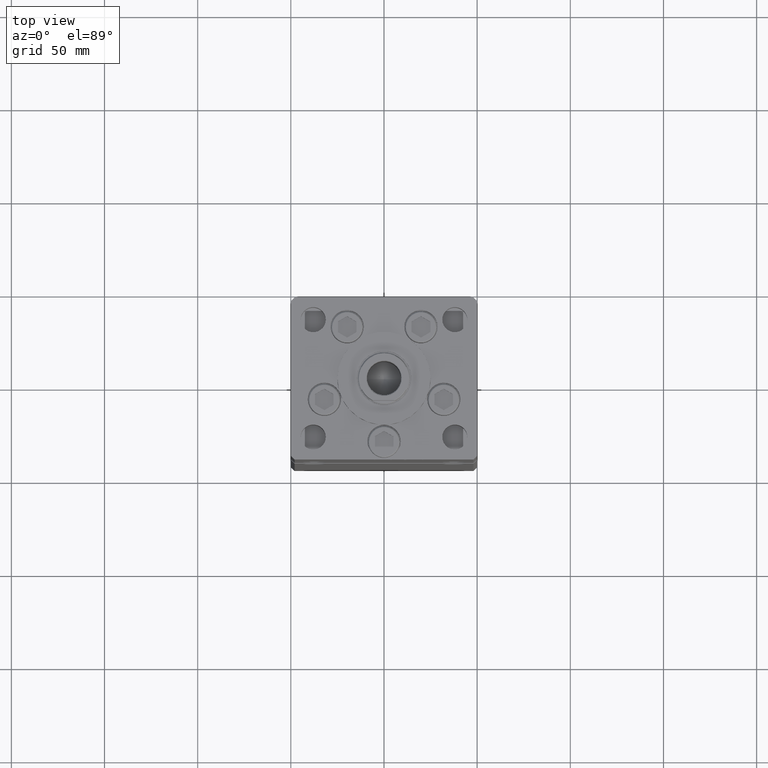
[diagram: clean part render]
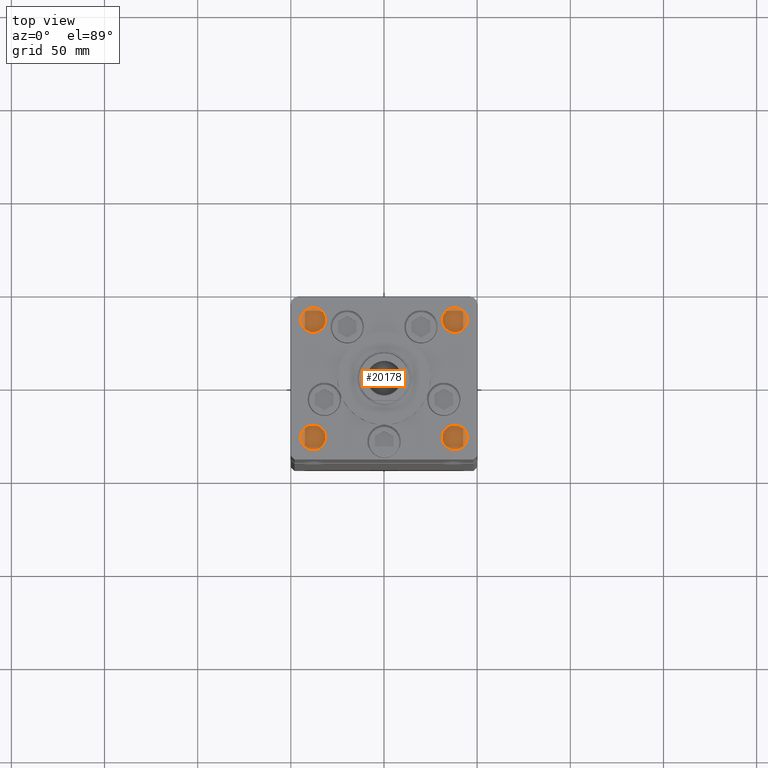
[diagram: same view with one face highlighted and labeled with its STEP entity id]
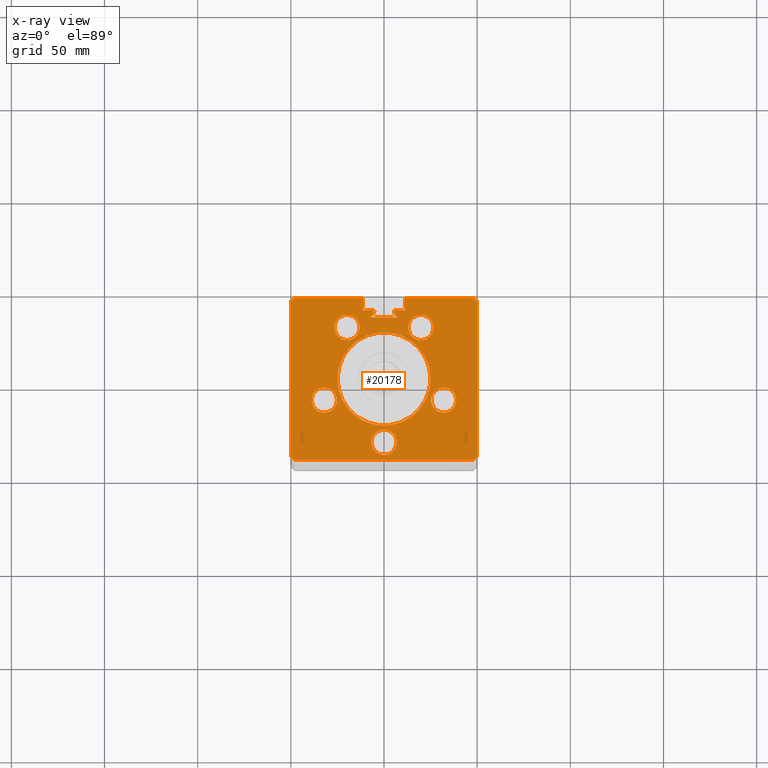
[diagram: x-ray of the same camera — body ghosted, the highlighted face saturated]
A machine part, top view. The second image highlights one B-rep face of the part: STEP entity #20178.
The next image is the same camera in x-ray: the body ghosted, the highlighted face saturated — about 0% of this face is hidden behind the body in this view.
In plain terms, the highlighted planar face has unit normal (0, 0, -1).
Its self-contained STEP definition (entity closure, byte-faithful):
#178 = EDGE_CURVE ( 'NONE', #42500, #14638, #43883, .T. ) ;
#255 = DIRECTION ( 'NONE',  ( 0.000000000000000000, 0.000000000000000000, 1.000000000000000000 ) ) ;
#380 = DIRECTION ( 'NONE',  ( 1.000000000000000000, 0.000000000000000000, 0.000000000000000000 ) ) ;
#450 = ORIENTED_EDGE ( 'NONE', *, *, #6765, .T. ) ;
#452 = LINE ( 'NONE', #45310, #17194 ) ;
#860 = CARTESIAN_POINT ( 'NONE',  ( 6.183333333333996151, 37.00000000000000000, 318.5000000000000000 ) ) ;
#976 = VECTOR ( 'NONE', #27513, 1000.000000000000000 ) ;
#1053 = CIRCLE ( 'NONE', #4461, 6.749999999999999112 ) ;
#1079 = FACE_BOUND ( 'NONE', #5528, .T. ) ;
#1113 = DIRECTION ( 'NONE',  ( 0.000000000000000000, 0.000000000000000000, 1.000000000000000000 ) ) ;
#1209 = VECTOR ( 'NONE', #21535, 1000.000000000000114 ) ;
#1382 = ORIENTED_EDGE ( 'NONE', *, *, #29632, .F. ) ;
#1476 = AXIS2_PLACEMENT_3D ( 'NONE', #30107, #1625, #26628 ) ;
#1625 = DIRECTION ( 'NONE',  ( 0.000000000000000000, 0.000000000000000000, -1.000000000000000000 ) ) ;
#1665 = ORIENTED_EDGE ( 'NONE', *, *, #6048, .T. ) ;
#2038 = VECTOR ( 'NONE', #26657, 1000.000000000000000 ) ;
#2439 = AXIS2_PLACEMENT_3D ( 'NONE', #15997, #40416, #380 ) ;
#2736 = CARTESIAN_POINT ( 'NONE',  ( 6.876153656360465050, 32.99999999999986500, 318.5000000000000000 ) ) ;
#2765 = ORIENTED_EDGE ( 'NONE', *, *, #19741, .F. ) ;
#2831 = AXIS2_PLACEMENT_3D ( 'NONE', #22090, #1113, #50276 ) ;
#2839 = CARTESIAN_POINT ( 'NONE',  ( 25.00000000000000000, 3.061616997868383043E-15, 318.5000000000000000 ) ) ;
#2843 = CARTESIAN_POINT ( 'NONE',  ( -50.00000000000001421, 41.49999999999999289, 318.5000000000000000 ) ) ;
#2864 = DIRECTION ( 'NONE',  ( 1.000000000000000000, 0.000000000000000000, 0.000000000000000000 ) ) ;
#2956 = VECTOR ( 'NONE', #3681, 1000.000000000000000 ) ;
#3152 = LINE ( 'NONE', #19305, #34737 ) ;
#3318 = DIRECTION ( 'NONE',  ( -1.000000000000000000, 0.000000000000000000, 0.000000000000000000 ) ) ;
#3645 = CARTESIAN_POINT ( 'NONE',  ( 50.00000000000001421, 41.49999999999999289, 318.5000000000000000 ) ) ;
#3681 = DIRECTION ( 'NONE',  ( -0.7071067811865487940, -0.7071067811865463515, 0.000000000000000000 ) ) ;
#3715 = CARTESIAN_POINT ( 'NONE',  ( -6.749999999999997335, -34.00000000000000000, 318.5000000000000000 ) ) ;
#3763 = CARTESIAN_POINT ( 'NONE',  ( -19.82068048781374259, 27.62499999999999645, 318.5000000000000000 ) ) ;
#3951 = EDGE_CURVE ( 'NONE', #19470, #18022, #38031, .T. ) ;
#4395 = DIRECTION ( 'NONE',  ( 1.000000000000000000, 0.000000000000000000, 0.000000000000000000 ) ) ;
#4438 = EDGE_CURVE ( 'NONE', #32525, #27516, #40581, .T. ) ;
#4461 = AXIS2_PLACEMENT_3D ( 'NONE', #12476, #33420, #32617 ) ;
#4486 = DIRECTION ( 'NONE',  ( 1.000000000000000000, 0.000000000000000000, 0.000000000000000000 ) ) ;
#4736 = ORIENTED_EDGE ( 'NONE', *, *, #24226, .F. ) ;
#4813 = VERTEX_POINT ( 'NONE', #9573 ) ;
#4893 = CARTESIAN_POINT ( 'NONE',  ( -11.24999999999999645, 43.50000000000000000, 318.5000000000000000 ) ) ;
#5283 = CARTESIAN_POINT ( 'NONE',  ( -25.30550741379015278, -11.33333333333334458, 318.5000000000000000 ) ) ;
#5387 = ORIENTED_EDGE ( 'NONE', *, *, #49611, .T. ) ;
#5528 = EDGE_LOOP ( 'NONE', ( #49193, #2765 ) ) ;
#5632 = EDGE_CURVE ( 'NONE', #16511, #25238, #34358, .T. ) ;
#5673 = LINE ( 'NONE', #26372, #1209 ) ;
#6048 = EDGE_CURVE ( 'NONE', #31065, #9070, #50813, .T. ) ;
#6134 = ORIENTED_EDGE ( 'NONE', *, *, #24869, .F. ) ;
#6563 = LINE ( 'NONE', #43086, #976 ) ;
#6662 = CIRCLE ( 'NONE', #24693, 25.00000000000000000 ) ;
#6765 = EDGE_CURVE ( 'NONE', #26953, #42966, #8249, .T. ) ;
#6898 = DIRECTION ( 'NONE',  ( 0.000000000000000000, 0.000000000000000000, 1.000000000000000000 ) ) ;
#6936 = ORIENTED_EDGE ( 'NONE', *, *, #25934, .F. ) ;
#7355 = LINE ( 'NONE', #40107, #33504 ) ;
#7663 = EDGE_CURVE ( 'NONE', #34642, #35252, #18245, .T. ) ;
#7669 = ORIENTED_EDGE ( 'NONE', *, *, #48875, .T. ) ;
#8249 = LINE ( 'NONE', #12025, #2956 ) ;
#9070 = VERTEX_POINT ( 'NONE', #51914 ) ;
#9153 = ORIENTED_EDGE ( 'NONE', *, *, #7663, .T. ) ;
#9212 = DIRECTION ( 'NONE',  ( 1.000000000000000000, 0.000000000000000000, 0.000000000000000000 ) ) ;
#9573 = CARTESIAN_POINT ( 'NONE',  ( 48.00000000000000711, 43.50000000000000000, 318.5000000000000000 ) ) ;
#10175 = DIRECTION ( 'NONE',  ( 0.7071067811865474617, -0.7071067811865474617, 0.000000000000000000 ) ) ;
#10268 = DIRECTION ( 'NONE',  ( -1.000000000000000000, 0.000000000000000000, 0.000000000000000000 ) ) ;
#10359 = CARTESIAN_POINT ( 'NONE',  ( -50.00000000000001421, 41.49999999999999289, 318.5000000000000000 ) ) ;
#10486 = PLANE ( 'NONE',  #1476 ) ;
#10580 = VECTOR ( 'NONE', #12373, 1000.000000000000000 ) ;
#10781 = CIRCLE ( 'NONE', #35597, 6.749999999999999112 ) ;
#10837 = CARTESIAN_POINT ( 'NONE',  ( -6.183333333333996151, 37.00000000000000000, 318.5000000000000000 ) ) ;
#10880 = VERTEX_POINT ( 'NONE', #2736 ) ;
#10887 = CARTESIAN_POINT ( 'NONE',  ( -25.00000000000000000, 0.000000000000000000, 318.5000000000000000 ) ) ;
#11017 = EDGE_CURVE ( 'NONE', #18696, #47207, #5673, .T. ) ;
#11849 = ORIENTED_EDGE ( 'NONE', *, *, #24662, .F. ) ;
#11945 = DIRECTION ( 'NONE',  ( 0.000000000000000000, 0.000000000000000000, -1.000000000000000000 ) ) ;
#11969 = DIRECTION ( 'NONE',  ( 1.000000000000000000, 0.000000000000000000, 0.000000000000000000 ) ) ;
#12025 = CARTESIAN_POINT ( 'NONE',  ( -48.00000000000000711, 43.50000000000000000, 318.5000000000000000 ) ) ;
#12039 = CARTESIAN_POINT ( 'NONE',  ( 0.000000000000000000, 0.000000000000000000, 318.5000000000000000 ) ) ;
#12373 = DIRECTION ( 'NONE',  ( -0.000000000000000000, -1.000000000000000000, 0.000000000000000000 ) ) ;
#12476 = CARTESIAN_POINT ( 'NONE',  ( -32.05550741379015278, -11.33333333333334458, 318.5000000000000000 ) ) ;
#12819 = DIRECTION ( 'NONE',  ( 1.000000000000000000, 0.000000000000000000, 0.000000000000000000 ) ) ;
#12949 = CARTESIAN_POINT ( 'NONE',  ( -5.249999999999995559, 36.06666666666599497, 318.5000000000000000 ) ) ;
#13242 = DIRECTION ( 'NONE',  ( 0.000000000000000000, 0.000000000000000000, 1.000000000000000000 ) ) ;
#13256 = ORIENTED_EDGE ( 'NONE', *, *, #178, .F. ) ;
#13463 = CIRCLE ( 'NONE', #43464, 6.749999999999999112 ) ;
#13507 = EDGE_CURVE ( 'NONE', #25238, #20240, #3152, .T. ) ;
#13731 = FACE_OUTER_BOUND ( 'NONE', #19222, .T. ) ;
#13901 = ORIENTED_EDGE ( 'NONE', *, *, #47087, .F. ) ;
#13971 = CIRCLE ( 'NONE', #16510, 6.749999999999999112 ) ;
#14095 = CARTESIAN_POINT ( 'NONE',  ( -5.375042956467946276, 35.59999999999899245, 318.5000000000000000 ) ) ;
#14421 = AXIS2_PLACEMENT_3D ( 'NONE', #24877, #52805, #41229 ) ;
#14638 = VERTEX_POINT ( 'NONE', #33956 ) ;
#14832 = CARTESIAN_POINT ( 'NONE',  ( -38.80550741379015278, -11.33333333333334458, 318.5000000000000000 ) ) ;
#15060 = ORIENTED_EDGE ( 'NONE', *, *, #13507, .F. ) ;
#15261 = EDGE_CURVE ( 'NONE', #27516, #32525, #10781, .T. ) ;
#15278 = ORIENTED_EDGE ( 'NONE', *, *, #4438, .F. ) ;
#15997 = CARTESIAN_POINT ( 'NONE',  ( -6.183333333333996151, 36.06666666666599497, 318.5000000000000000 ) ) ;
#16492 = CARTESIAN_POINT ( 'NONE',  ( -47.99999999999998579, -43.50000000000000000, 318.5000000000000000 ) ) ;
#16510 = AXIS2_PLACEMENT_3D ( 'NONE', #25070, #13242, #9212 ) ;
#16511 = VERTEX_POINT ( 'NONE', #3645 ) ;
#16605 = DIRECTION ( 'NONE',  ( -0.000000000000000000, 0.000000000000000000, 1.000000000000000000 ) ) ;
#16802 = ORIENTED_EDGE ( 'NONE', *, *, #37180, .F. ) ;
#17024 = VERTEX_POINT ( 'NONE', #36487 ) ;
#17194 = VECTOR ( 'NONE', #4486, 1000.000000000000000 ) ;
#17495 = FACE_BOUND ( 'NONE', #44609, .T. ) ;
#17830 = ORIENTED_EDGE ( 'NONE', *, *, #19153, .F. ) ;
#18022 = VERTEX_POINT ( 'NONE', #860 ) ;
#18245 = LINE ( 'NONE', #34596, #50887 ) ;
#18252 = DIRECTION ( 'NONE',  ( 0.000000000000000000, 0.000000000000000000, 1.000000000000000000 ) ) ;
#18571 = FACE_BOUND ( 'NONE', #52720, .T. ) ;
#18696 = VERTEX_POINT ( 'NONE', #44385 ) ;
#18730 = ORIENTED_EDGE ( 'NONE', *, *, #5632, .F. ) ;
#18800 = CARTESIAN_POINT ( 'NONE',  ( 11.24999999999999645, 37.00000000000000000, 318.5000000000000000 ) ) ;
#19153 = EDGE_CURVE ( 'NONE', #14638, #42500, #13463, .T. ) ;
#19222 = EDGE_LOOP ( 'NONE', ( #1665, #46702, #35357, #450, #7669, #9153, #42178, #15060, #18730, #49113, #16802, #5387, #42817, #41868, #41726, #20188, #25344, #4736, #35884 ) ) ;
#19305 = CARTESIAN_POINT ( 'NONE',  ( 49.99999999999998579, -41.49999999999999289, 318.5000000000000000 ) ) ;
#19470 = VERTEX_POINT ( 'NONE', #37008 ) ;
#19560 = DIRECTION ( 'NONE',  ( -0.7071067811865474617, -0.7071067811865474617, 0.000000000000000000 ) ) ;
#19741 = EDGE_CURVE ( 'NONE', #17024, #41020, #44330, .T. ) ;
#19785 = EDGE_LOOP ( 'NONE', ( #17830, #13256 ) ) ;
#20099 = DIRECTION ( 'NONE',  ( 0.7071067811865487940, -0.7071067811865463515, 0.000000000000000000 ) ) ;
#20178 = ADVANCED_FACE ( 'NONE', ( #18571, #22331, #1079, #34657, #17495, #13731, #51300 ), #10486, .F. ) ;
#20188 = ORIENTED_EDGE ( 'NONE', *, *, #41982, .T. ) ;
#20240 = VERTEX_POINT ( 'NONE', #51836 ) ;
#20362 = AXIS2_PLACEMENT_3D ( 'NONE', #39920, #6898, #2864 ) ;
#20563 = DIRECTION ( 'NONE',  ( 0.000000000000000000, 0.000000000000000000, 1.000000000000000000 ) ) ;
#21535 = DIRECTION ( 'NONE',  ( 0.4999999999999987788, 0.8660254037844392627, 0.000000000000000000 ) ) ;
#21865 = LINE ( 'NONE', #32660, #35052 ) ;
#22090 = CARTESIAN_POINT ( 'NONE',  ( 19.82068048781374259, 27.62500000000000000, 318.5000000000000000 ) ) ;
#22256 = AXIS2_PLACEMENT_3D ( 'NONE', #42138, #18252, #46426 ) ;
#22331 = FACE_BOUND ( 'NONE', #19785, .T. ) ;
#22579 = CARTESIAN_POINT ( 'NONE',  ( 19.82068048781374259, 27.62500000000000000, 318.5000000000000000 ) ) ;
#23014 = ORIENTED_EDGE ( 'NONE', *, *, #15261, .F. ) ;
#23082 = AXIS2_PLACEMENT_3D ( 'NONE', #25892, #42254, #30184 ) ;
#23416 = CARTESIAN_POINT ( 'NONE',  ( 13.07068048781374081, 27.62500000000000000, 318.5000000000000000 ) ) ;
#24226 = EDGE_CURVE ( 'NONE', #27808, #47207, #29901, .T. ) ;
#24662 = EDGE_CURVE ( 'NONE', #26800, #49333, #52091, .T. ) ;
#24693 = AXIS2_PLACEMENT_3D ( 'NONE', #12039, #16605, #32440 ) ;
#24869 = EDGE_CURVE ( 'NONE', #52860, #29984, #6662, .T. ) ;
#24877 = CARTESIAN_POINT ( 'NONE',  ( -19.82068048781374259, 27.62499999999999645, 318.5000000000000000 ) ) ;
#24924 = DIRECTION ( 'NONE',  ( 0.000000000000000000, 0.000000000000000000, -1.000000000000000000 ) ) ;
#24935 = VECTOR ( 'NONE', #48685, 1000.000000000000000 ) ;
#25070 = CARTESIAN_POINT ( 'NONE',  ( 32.05550741379015278, -11.33333333333334103, 318.5000000000000000 ) ) ;
#25238 = VERTEX_POINT ( 'NONE', #37189 ) ;
#25344 = ORIENTED_EDGE ( 'NONE', *, *, #11017, .T. ) ;
#25892 = CARTESIAN_POINT ( 'NONE',  ( 0.000000000000000000, 0.000000000000000000, 318.5000000000000000 ) ) ;
#25934 = EDGE_CURVE ( 'NONE', #49333, #26800, #33266, .T. ) ;
#26372 = CARTESIAN_POINT ( 'NONE',  ( -19.44653440471351757, 11.22746187336663404, 318.5000000000000000 ) ) ;
#26628 = DIRECTION ( 'NONE',  ( -1.000000000000000000, 0.000000000000000000, -0.000000000000000000 ) ) ;
#26657 = DIRECTION ( 'NONE',  ( -1.000000000000000000, 0.000000000000000000, 0.000000000000000000 ) ) ;
#26698 = CARTESIAN_POINT ( 'NONE',  ( -26.57068048781373903, 27.62499999999999645, 318.5000000000000000 ) ) ;
#26800 = VERTEX_POINT ( 'NONE', #26698 ) ;
#26953 = VERTEX_POINT ( 'NONE', #33077 ) ;
#27513 = DIRECTION ( 'NONE',  ( 0.000000000000000000, 1.000000000000000000, 0.000000000000000000 ) ) ;
#27514 = LINE ( 'NONE', #52740, #24935 ) ;
#27516 = VERTEX_POINT ( 'NONE', #45024 ) ;
#27618 = AXIS2_PLACEMENT_3D ( 'NONE', #36394, #20563, #11969 ) ;
#27757 = CIRCLE ( 'NONE', #43198, 0.9333333333339999260 ) ;
#27808 = VERTEX_POINT ( 'NONE', #12949 ) ;
#28505 = VECTOR ( 'NONE', #20099, 1000.000000000000000 ) ;
#29016 = EDGE_CURVE ( 'NONE', #29984, #52860, #40193, .T. ) ;
#29017 = EDGE_CURVE ( 'NONE', #19470, #10880, #21865, .T. ) ;
#29632 = EDGE_CURVE ( 'NONE', #45538, #35869, #31701, .T. ) ;
#29901 = CIRCLE ( 'NONE', #2439, 0.9333333333339999260 ) ;
#29984 = VERTEX_POINT ( 'NONE', #10887 ) ;
#30098 = DIRECTION ( 'NONE',  ( 1.000000000000000000, 0.000000000000000000, 0.000000000000000000 ) ) ;
#30107 = CARTESIAN_POINT ( 'NONE',  ( 0.000000000000000000, 0.000000000000000000, 318.5000000000000000 ) ) ;
#30184 = DIRECTION ( 'NONE',  ( 1.000000000000000000, 0.000000000000000000, 0.000000000000000000 ) ) ;
#30670 = CARTESIAN_POINT ( 'NONE',  ( 0.000000000000000000, 37.00000000000000000, 318.5000000000000000 ) ) ;
#30997 = VECTOR ( 'NONE', #10268, 1000.000000000000000 ) ;
#31065 = VERTEX_POINT ( 'NONE', #10837 ) ;
#31085 = ORIENTED_EDGE ( 'NONE', *, *, #29016, .F. ) ;
#31449 = LINE ( 'NONE', #42751, #30997 ) ;
#31584 = DIRECTION ( 'NONE',  ( 3.344045254895050973E-16, -1.000000000000000000, 0.000000000000000000 ) ) ;
#31697 = EDGE_CURVE ( 'NONE', #31946, #18022, #31449, .T. ) ;
#31701 = CIRCLE ( 'NONE', #22256, 6.749999999999999112 ) ;
#31946 = VERTEX_POINT ( 'NONE', #18800 ) ;
#32075 = VECTOR ( 'NONE', #50010, 1000.000000000000000 ) ;
#32440 = DIRECTION ( 'NONE',  ( 1.000000000000000000, 0.000000000000000000, 0.000000000000000000 ) ) ;
#32525 = VERTEX_POINT ( 'NONE', #23416 ) ;
#32617 = DIRECTION ( 'NONE',  ( 1.000000000000000000, 0.000000000000000000, 0.000000000000000000 ) ) ;
#32660 = CARTESIAN_POINT ( 'NONE',  ( 19.44653440471351757, 11.22746187336663404, 318.5000000000000000 ) ) ;
#33049 = CARTESIAN_POINT ( 'NONE',  ( 11.24999999999999645, 0.000000000000000000, 318.5000000000000000 ) ) ;
#33077 = CARTESIAN_POINT ( 'NONE',  ( -48.00000000000000711, 43.50000000000000000, 318.5000000000000000 ) ) ;
#33266 = CIRCLE ( 'NONE', #14421, 6.749999999999999112 ) ;
#33350 = EDGE_LOOP ( 'NONE', ( #31085, #6134 ) ) ;
#33420 = DIRECTION ( 'NONE',  ( 0.000000000000000000, 0.000000000000000000, 1.000000000000000000 ) ) ;
#33504 = VECTOR ( 'NONE', #3318, 1000.000000000000000 ) ;
#33585 = DIRECTION ( 'NONE',  ( 0.000000000000000000, 0.000000000000000000, 1.000000000000000000 ) ) ;
#33956 = CARTESIAN_POINT ( 'NONE',  ( 6.750000000000000888, -34.00000000000000000, 318.5000000000000000 ) ) ;
#34358 = LINE ( 'NONE', #41622, #49166 ) ;
#34432 = LINE ( 'NONE', #4893, #32075 ) ;
#34596 = CARTESIAN_POINT ( 'NONE',  ( -49.99999999999998579, -41.49999999999999289, 318.5000000000000000 ) ) ;
#34642 = VERTEX_POINT ( 'NONE', #38370 ) ;
#34657 = FACE_BOUND ( 'NONE', #45608, .T. ) ;
#34737 = VECTOR ( 'NONE', #19560, 1000.000000000000114 ) ;
#35052 = VECTOR ( 'NONE', #49027, 1000.000000000000114 ) ;
#35252 = VERTEX_POINT ( 'NONE', #16492 ) ;
#35357 = ORIENTED_EDGE ( 'NONE', *, *, #52425, .F. ) ;
#35503 = CARTESIAN_POINT ( 'NONE',  ( 38.80550741379015278, -11.33333333333334103, 318.5000000000000000 ) ) ;
#35597 = AXIS2_PLACEMENT_3D ( 'NONE', #22579, #33585, #30098 ) ;
#35869 = VERTEX_POINT ( 'NONE', #5283 ) ;
#35884 = ORIENTED_EDGE ( 'NONE', *, *, #51512, .F. ) ;
#36394 = CARTESIAN_POINT ( 'NONE',  ( 2.081899558550500280E-15, -34.00000000000000000, 318.5000000000000000 ) ) ;
#36487 = CARTESIAN_POINT ( 'NONE',  ( 25.30550741379015278, -11.33333333333334103, 318.5000000000000000 ) ) ;
#36718 = LINE ( 'NONE', #48800, #28505 ) ;
#37008 = CARTESIAN_POINT ( 'NONE',  ( 5.375042956467946276, 35.59999999999899245, 318.5000000000000000 ) ) ;
#37180 = EDGE_CURVE ( 'NONE', #44152, #4813, #452, .T. ) ;
#37189 = CARTESIAN_POINT ( 'NONE',  ( 49.99999999999998579, -41.49999999999999289, 318.5000000000000000 ) ) ;
#38031 = CIRCLE ( 'NONE', #45730, 0.9333333333339999260 ) ;
#38370 = CARTESIAN_POINT ( 'NONE',  ( -49.99999999999998579, -41.49999999999999289, 318.5000000000000000 ) ) ;
#38828 = VECTOR ( 'NONE', #31584, 1000.000000000000000 ) ;
#39920 = CARTESIAN_POINT ( 'NONE',  ( 32.05550741379015278, -11.33333333333334103, 318.5000000000000000 ) ) ;
#40107 = CARTESIAN_POINT ( 'NONE',  ( 0.000000000000000000, 32.99999999999986500, 318.5000000000000000 ) ) ;
#40193 = CIRCLE ( 'NONE', #23082, 25.00000000000000000 ) ;
#40416 = DIRECTION ( 'NONE',  ( 0.000000000000000000, 0.000000000000000000, -1.000000000000000000 ) ) ;
#40581 = CIRCLE ( 'NONE', #2831, 6.749999999999999112 ) ;
#40828 = LINE ( 'NONE', #33049, #10580 ) ;
#40830 = DIRECTION ( 'NONE',  ( 1.000000000000000000, 0.000000000000000000, 0.000000000000000000 ) ) ;
#41020 = VERTEX_POINT ( 'NONE', #35503 ) ;
#41229 = DIRECTION ( 'NONE',  ( 1.000000000000000000, 0.000000000000000000, 0.000000000000000000 ) ) ;
#41622 = CARTESIAN_POINT ( 'NONE',  ( 50.00000000000001421, 41.49999999999999289, 318.5000000000000000 ) ) ;
#41726 = ORIENTED_EDGE ( 'NONE', *, *, #29017, .T. ) ;
#41868 = ORIENTED_EDGE ( 'NONE', *, *, #3951, .F. ) ;
#41886 = EDGE_CURVE ( 'NONE', #35252, #20240, #27514, .T. ) ;
#41982 = EDGE_CURVE ( 'NONE', #10880, #18696, #7355, .T. ) ;
#42138 = CARTESIAN_POINT ( 'NONE',  ( -32.05550741379015278, -11.33333333333334458, 318.5000000000000000 ) ) ;
#42178 = ORIENTED_EDGE ( 'NONE', *, *, #41886, .T. ) ;
#42254 = DIRECTION ( 'NONE',  ( -0.000000000000000000, 0.000000000000000000, 1.000000000000000000 ) ) ;
#42490 = VERTEX_POINT ( 'NONE', #52880 ) ;
#42500 = VERTEX_POINT ( 'NONE', #3715 ) ;
#42751 = CARTESIAN_POINT ( 'NONE',  ( 0.000000000000000000, 37.00000000000000000, 318.5000000000000000 ) ) ;
#42817 = ORIENTED_EDGE ( 'NONE', *, *, #31697, .T. ) ;
#42966 = VERTEX_POINT ( 'NONE', #10359 ) ;
#43086 = CARTESIAN_POINT ( 'NONE',  ( -11.24999999999999645, 0.000000000000000000, 318.5000000000000000 ) ) ;
#43198 = AXIS2_PLACEMENT_3D ( 'NONE', #45296, #24924, #12819 ) ;
#43464 = AXIS2_PLACEMENT_3D ( 'NONE', #44850, #49699, #40830 ) ;
#43883 = CIRCLE ( 'NONE', #27618, 6.749999999999999112 ) ;
#44152 = VERTEX_POINT ( 'NONE', #52434 ) ;
#44330 = CIRCLE ( 'NONE', #20362, 6.749999999999999112 ) ;
#44385 = CARTESIAN_POINT ( 'NONE',  ( -6.876153656360465050, 32.99999999999986500, 318.5000000000000000 ) ) ;
#44609 = EDGE_LOOP ( 'NONE', ( #6936, #11849 ) ) ;
#44842 = DIRECTION ( 'NONE',  ( 1.000000000000000000, 0.000000000000000000, 0.000000000000000000 ) ) ;
#44850 = CARTESIAN_POINT ( 'NONE',  ( 2.081899558550500280E-15, -34.00000000000000000, 318.5000000000000000 ) ) ;
#45024 = CARTESIAN_POINT ( 'NONE',  ( 26.57068048781373903, 27.62500000000000000, 318.5000000000000000 ) ) ;
#45108 = EDGE_CURVE ( 'NONE', #9070, #42490, #6563, .T. ) ;
#45296 = CARTESIAN_POINT ( 'NONE',  ( -6.183333333333996151, 36.06666666666599497, 318.5000000000000000 ) ) ;
#45310 = CARTESIAN_POINT ( 'NONE',  ( -11.24999999999999645, 43.50000000000000000, 318.5000000000000000 ) ) ;
#45538 = VERTEX_POINT ( 'NONE', #14832 ) ;
#45608 = EDGE_LOOP ( 'NONE', ( #23014, #15278 ) ) ;
#45730 = AXIS2_PLACEMENT_3D ( 'NONE', #48719, #11945, #4395 ) ;
#46426 = DIRECTION ( 'NONE',  ( 1.000000000000000000, 0.000000000000000000, 0.000000000000000000 ) ) ;
#46702 = ORIENTED_EDGE ( 'NONE', *, *, #45108, .T. ) ;
#46799 = CARTESIAN_POINT ( 'NONE',  ( -13.07068048781374259, 27.62499999999999645, 318.5000000000000000 ) ) ;
#47087 = EDGE_CURVE ( 'NONE', #35869, #45538, #1053, .T. ) ;
#47207 = VERTEX_POINT ( 'NONE', #14095 ) ;
#47677 = EDGE_CURVE ( 'NONE', #4813, #16511, #36718, .T. ) ;
#48652 = AXIS2_PLACEMENT_3D ( 'NONE', #3763, #255, #44842 ) ;
#48685 = DIRECTION ( 'NONE',  ( 1.000000000000000000, 0.000000000000000000, 0.000000000000000000 ) ) ;
#48719 = CARTESIAN_POINT ( 'NONE',  ( 6.183333333333996151, 36.06666666666599497, 318.5000000000000000 ) ) ;
#48800 = CARTESIAN_POINT ( 'NONE',  ( 48.00000000000000711, 43.50000000000000000, 318.5000000000000000 ) ) ;
#48875 = EDGE_CURVE ( 'NONE', #42966, #34642, #52523, .T. ) ;
#49027 = DIRECTION ( 'NONE',  ( 0.4999999999999987788, -0.8660254037844392627, 0.000000000000000000 ) ) ;
#49113 = ORIENTED_EDGE ( 'NONE', *, *, #47677, .F. ) ;
#49166 = VECTOR ( 'NONE', #50743, 1000.000000000000000 ) ;
#49193 = ORIENTED_EDGE ( 'NONE', *, *, #49235, .F. ) ;
#49235 = EDGE_CURVE ( 'NONE', #41020, #17024, #13971, .T. ) ;
#49333 = VERTEX_POINT ( 'NONE', #46799 ) ;
#49611 = EDGE_CURVE ( 'NONE', #44152, #31946, #40828, .T. ) ;
#49699 = DIRECTION ( 'NONE',  ( 0.000000000000000000, 0.000000000000000000, 1.000000000000000000 ) ) ;
#50010 = DIRECTION ( 'NONE',  ( 1.000000000000000000, 0.000000000000000000, 0.000000000000000000 ) ) ;
#50276 = DIRECTION ( 'NONE',  ( 1.000000000000000000, 0.000000000000000000, 0.000000000000000000 ) ) ;
#50743 = DIRECTION ( 'NONE',  ( -3.344045254895050973E-16, -1.000000000000000000, 0.000000000000000000 ) ) ;
#50813 = LINE ( 'NONE', #30670, #2038 ) ;
#50887 = VECTOR ( 'NONE', #10175, 1000.000000000000114 ) ;
#51300 = FACE_BOUND ( 'NONE', #33350, .T. ) ;
#51512 = EDGE_CURVE ( 'NONE', #31065, #27808, #27757, .T. ) ;
#51836 = CARTESIAN_POINT ( 'NONE',  ( 47.99999999999998579, -43.50000000000000000, 318.5000000000000000 ) ) ;
#51914 = CARTESIAN_POINT ( 'NONE',  ( -11.24999999999999645, 37.00000000000000000, 318.5000000000000000 ) ) ;
#52091 = CIRCLE ( 'NONE', #48652, 6.749999999999999112 ) ;
#52425 = EDGE_CURVE ( 'NONE', #26953, #42490, #34432, .T. ) ;
#52434 = CARTESIAN_POINT ( 'NONE',  ( 11.24999999999998934, 43.50000000000000000, 318.5000000000000000 ) ) ;
#52523 = LINE ( 'NONE', #2843, #38828 ) ;
#52720 = EDGE_LOOP ( 'NONE', ( #13901, #1382 ) ) ;
#52740 = CARTESIAN_POINT ( 'NONE',  ( -47.99999999999998579, -43.50000000000000000, 318.5000000000000000 ) ) ;
#52805 = DIRECTION ( 'NONE',  ( 0.000000000000000000, 0.000000000000000000, 1.000000000000000000 ) ) ;
#52860 = VERTEX_POINT ( 'NONE', #2839 ) ;
#52880 = CARTESIAN_POINT ( 'NONE',  ( -11.24999999999999645, 43.50000000000000000, 318.5000000000000000 ) ) ;